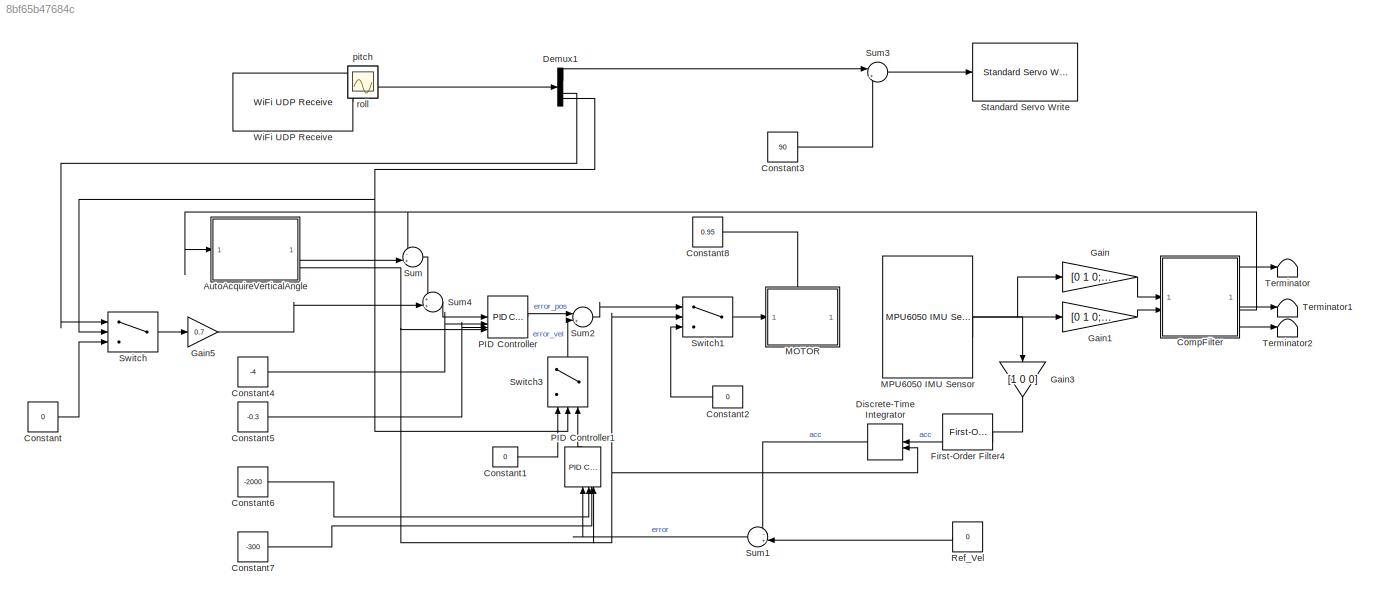
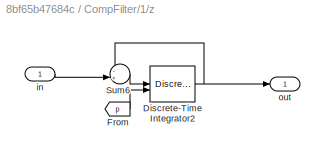
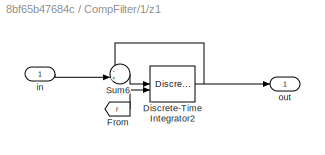
MODEL slx_8bf65b47684c
KIND model
CONFIG AbsTol = auto
CONFIG EnableMultiTasking = on
CONFIG FixedStep = T
CONFIG MaxStep = auto
CONFIG MinStep = auto
CONFIG PreLoadFcn = T=0.01;\nalpha=0.02;\n\nN=200 % window size for moving range
CONFIG RelTol = 1e-3
CONFIG SampleTimeConstraint = Unconstrained
CONFIG SolverName = FixedStepDiscrete
CONFIG StartTime = 0.0
CONFIG StopTime = inf
WORKSPACE source: mxarray member
WORKSPACE deadzone = 100
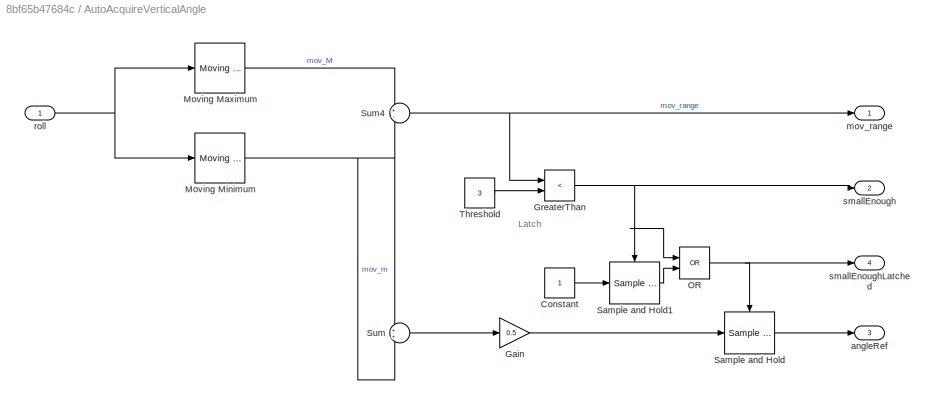
BLOCK [SubSystem] AutoAcquireVerticalAngle
BLOCK [Constant] AutoAcquireVerticalAngle/Constant
BLOCK [Gain] AutoAcquireVerticalAngle/Gain
  Gain = 0.5
BLOCK [RelationalOperator] AutoAcquireVerticalAngle/GreaterThan
  InputSameDT = off
  Operator = <
  OutDataTypeStr = boolean
  RndMeth = Simplest
BLOCK [Reference] AutoAcquireVerticalAngle/Moving Maximum  REF=dspstat3/Moving
Maximum
  SourceBlock = dspstat3/Moving\nMaximum
  SourceType = dsp.simulink.MovingMaximum
BLOCK [Reference] AutoAcquireVerticalAngle/Moving Minimum  REF=dspstat3/Moving
Minimum
  SourceBlock = dspstat3/Moving\nMinimum
  SourceType = dsp.simulink.MovingMinimum
BLOCK [Logic] AutoAcquireVerticalAngle/OR
  AllPortsSameDT = off
  IconShape = distinctive
  Operator = OR
  OutDataTypeStr = boolean
BLOCK [Reference] AutoAcquireVerticalAngle/Sample and Hold  REF=dspsigops/Sample
and Hold
  SourceBlock = dspsigops/Sample\nand Hold
  SourceType = Sample and Hold
BLOCK [Reference] AutoAcquireVerticalAngle/Sample and Hold1  REF=dspsigops/Sample
and Hold
  SourceBlock = dspsigops/Sample\nand Hold
  SourceType = Sample and Hold
BLOCK [Sum] AutoAcquireVerticalAngle/Sum
BLOCK [Sum] AutoAcquireVerticalAngle/Sum4
  Inputs = +-
BLOCK [Constant] AutoAcquireVerticalAngle/Threshold
  Value = 3
BLOCK [Outport] AutoAcquireVerticalAngle/angleRef
  Port = 3
BLOCK [Outport] AutoAcquireVerticalAngle/mov_range
BLOCK [Inport] AutoAcquireVerticalAngle/roll
BLOCK [Outport] AutoAcquireVerticalAngle/smallEnough
  Port = 2
BLOCK [Outport] AutoAcquireVerticalAngle/smallEnoughLatched
  Port = 4
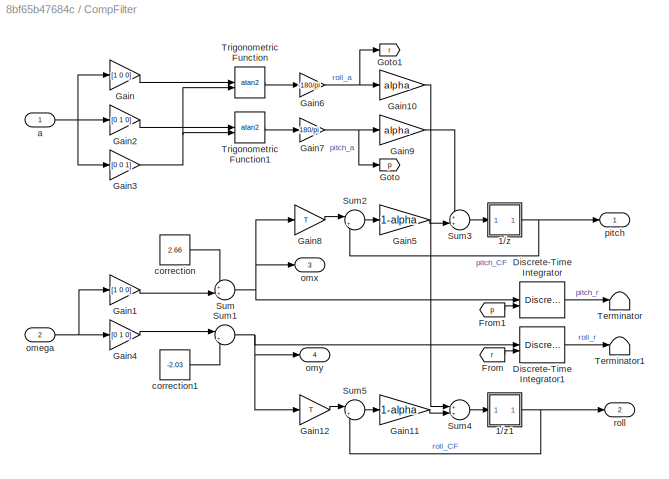
BLOCK [SubSystem] CompFilter
BLOCK [SubSystem] CompFilter/1//z
BLOCK [DiscreteIntegrator] CompFilter/1//z/Discrete-Time Integrator2
  ICPrevOutput = DiscIntNeverNeededParam
  ICPrevScaledInput = DiscIntNeverNeededParam
  InitialConditionSetting = Auto
  InitialConditionSource = external
  IntegratorMethod = Accumulation: Forward Euler
  SampleTime = -1
BLOCK [From] CompFilter/1//z/From
  GotoTag = p
  TagVisibility = global
BLOCK [Sum] CompFilter/1//z/Sum6
  Inputs = -+|
BLOCK [Inport] CompFilter/1//z/in
BLOCK [Outport] CompFilter/1//z/out
BLOCK [SubSystem] CompFilter/1//z1
BLOCK [DiscreteIntegrator] CompFilter/1//z1/Discrete-Time Integrator2
  ICPrevOutput = DiscIntNeverNeededParam
  ICPrevScaledInput = DiscIntNeverNeededParam
  InitialConditionSetting = Auto
  InitialConditionSource = external
  IntegratorMethod = Accumulation: Forward Euler
  SampleTime = -1
BLOCK [From] CompFilter/1//z1/From
  GotoTag = r
  TagVisibility = global
BLOCK [Sum] CompFilter/1//z1/Sum6
  Inputs = -+|
BLOCK [Inport] CompFilter/1//z1/in
BLOCK [Outport] CompFilter/1//z1/out
BLOCK [DiscreteIntegrator] CompFilter/Discrete-Time Integrator
  ICPrevOutput = DiscIntNeverNeededParam
  ICPrevScaledInput = DiscIntNeverNeededParam
  InitialConditionSetting = Auto
  InitialConditionSource = external
  SampleTime = -1
BLOCK [DiscreteIntegrator] CompFilter/Discrete-Time Integrator1
  ICPrevOutput = DiscIntNeverNeededParam
  ICPrevScaledInput = DiscIntNeverNeededParam
  InitialConditionSetting = Auto
  InitialConditionSource = external
  SampleTime = -1
BLOCK [From] CompFilter/From
  GotoTag = r
  TagVisibility = global
BLOCK [From] CompFilter/From1
  GotoTag = p
  TagVisibility = global
BLOCK [Gain] CompFilter/Gain
  Gain = [1 0 0]
  Multiplication = Matrix(K*u)
BLOCK [Gain] CompFilter/Gain1
  Gain = [1 0 0]
  Multiplication = Matrix(K*u)
BLOCK [Gain] CompFilter/Gain10
  Gain = alpha
BLOCK [Gain] CompFilter/Gain11
  Gain = 1-alpha
BLOCK [Gain] CompFilter/Gain12
  Gain = T
BLOCK [Gain] CompFilter/Gain2
  Gain = [0 1 0]
  Multiplication = Matrix(K*u)
BLOCK [Gain] CompFilter/Gain3
  Gain = [0 0 1]
  Multiplication = Matrix(K*u)
BLOCK [Gain] CompFilter/Gain4
  Gain = [0 1 0]
  Multiplication = Matrix(K*u)
BLOCK [Gain] CompFilter/Gain5
  Gain = 1-alpha
BLOCK [Gain] CompFilter/Gain6
  Gain = -180/pi
BLOCK [Gain] CompFilter/Gain7
  Gain = 180/pi
BLOCK [Gain] CompFilter/Gain8
  Gain = T
BLOCK [Gain] CompFilter/Gain9
  Gain = alpha
BLOCK [Goto] CompFilter/Goto
  GotoTag = p
  TagVisibility = global
BLOCK [Goto] CompFilter/Goto1
  GotoTag = r
  TagVisibility = global
BLOCK [Sum] CompFilter/Sum
  Inputs = ++|
BLOCK [Sum] CompFilter/Sum1
  Inputs = |++
BLOCK [Sum] CompFilter/Sum2
  Inputs = |++
BLOCK [Sum] CompFilter/Sum3
  Inputs = ++|
BLOCK [Sum] CompFilter/Sum4
  Inputs = ++|
BLOCK [Sum] CompFilter/Sum5
  Inputs = |++
BLOCK [Terminator] CompFilter/Terminator
BLOCK [Terminator] CompFilter/Terminator1
BLOCK [Trigonometry] CompFilter/Trigonometric Function
  Operator = atan2
BLOCK [Trigonometry] CompFilter/Trigonometric Function1
  Operator = atan2
BLOCK [Inport] CompFilter/a
BLOCK [Constant] CompFilter/correction
  SampleTime = T
  Value = 2.66
BLOCK [Constant] CompFilter/correction1
  SampleTime = T
  Value = -2.03
BLOCK [Inport] CompFilter/omega
  Port = 2
BLOCK [Outport] CompFilter/omx
  Port = 3
BLOCK [Outport] CompFilter/omy
  Port = 4
BLOCK [Outport] CompFilter/pitch
BLOCK [Outport] CompFilter/roll
  Port = 2
BLOCK [Constant] Constant
  NameLocation = top
  Value = 0
BLOCK [Constant] Constant1
  Value = 0
BLOCK [Constant] Constant2
  NameLocation = top
  Value = 0
BLOCK [Constant] Constant3
  Value = 90
BLOCK [Constant] Constant4
  Value = -4
BLOCK [Constant] Constant5
  Value = -0.3
BLOCK [Constant] Constant6
  Value = -2000
BLOCK [Constant] Constant7
  Value = -300
BLOCK [Constant] Constant8
  Value = 0.95
BLOCK [Demux] Demux1
BLOCK [DiscreteIntegrator] Discrete-Time Integrator
  ExternalReset = rising
  ICPrevOutput = DiscIntNeverNeededParam
  ICPrevScaledInput = DiscIntNeverNeededParam
  InitialConditionSetting = Auto
  NameLocation = top
  SampleTime = -1
BLOCK [Reference] First-Order Filter4  REF=spsFirstOrderFilterLib/First-Order
Filter
  LibrarySourceBlock = sps_lib/Control/Filters/First-Order\nFilter
  NameLocation = top
  SourceBlock = spsFirstOrderFilterLib/First-Order\nFilter
  SourceType = First-Order Filter
BLOCK [Gain] Gain
  Gain = [0 1 0; 0 0 1; 1 0 0]
  Multiplication = Matrix(K*u) (u vector)
BLOCK [Gain] Gain1
  Gain = [0 1 0; 0 0 1; 1 0 0]
  Multiplication = Matrix(K*u) (u vector)
BLOCK [Gain] Gain3
  Gain = [1 0 0]
  Multiplication = Matrix(K*u) (u vector)
  NameLocation = left
BLOCK [Gain] Gain5
  Gain = 0.7
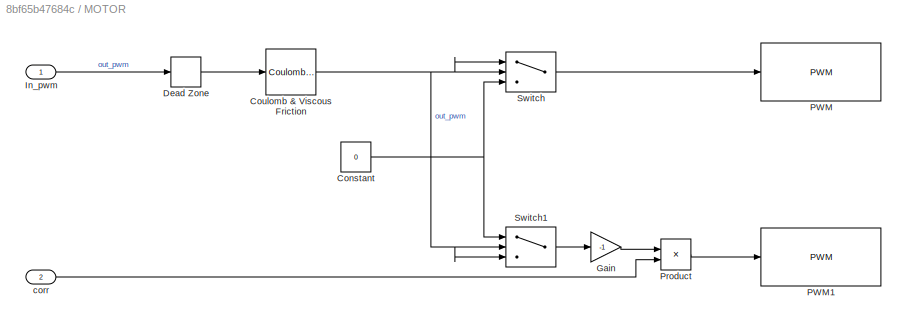
BLOCK [SubSystem] MOTOR
  PortSchema = {"entries":[{"content":{"sides":[{"content":{"connectorIds":["In1"]},"type":"ConnectorPlacement.EquallySpacedRectSide","uuid":"4dfa6da8-0fd4-4b38-98fa-19a097efdbe3"},{"content":{"side":"RIGHT"},"type":"ConnectorPlacement.EquallySpacedRectSide","uuid":"5fd8e77b-49e9-484d-9c8c-1bcf643e6957"},{"content":{"connectorIds":["In2"],"side":"TOP"},"type":"ConnectorPlacement.EquallySpacedRectSide","uuid":"5a...<+221ch>
BLOCK [Constant] MOTOR/Constant
  Value = 0
BLOCK [Reference] MOTOR/Coulomb & Viscous Friction  REF=simulink/Discontinuities/Coulomb &
Viscous Friction
  SourceBlock = simulink/Discontinuities/Coulomb &\nViscous Friction
  SourceType = Coulombic and Viscous Friction
BLOCK [DeadZone] MOTOR/Dead Zone
  LowerValue = -100
  UpperValue = 100
BLOCK [Gain] MOTOR/Gain
  Gain = -1
BLOCK [Inport] MOTOR/In_pwm
BLOCK [Reference] MOTOR/PWM  REF=arduinolib/PWM
  SourceBlock = arduinolib/PWM
  SourceType = Arduino PWM
BLOCK [Reference] MOTOR/PWM1  REF=arduinolib/PWM
  SourceBlock = arduinolib/PWM
  SourceType = Arduino PWM
BLOCK [Product] MOTOR/Product
BLOCK [Switch] MOTOR/Switch
  Criteria = u2 > Threshold
  InputSameDT = off
  SaturateOnIntegerOverflow = off
BLOCK [Switch] MOTOR/Switch1
  Criteria = u2 > Threshold
  InputSameDT = off
  SaturateOnIntegerOverflow = off
BLOCK [Inport] MOTOR/corr
  Port = 2
BLOCK [Reference] MPU6050 IMU Sensor  REF=arduinosensorlib/MPU6050 IMU Sensor
  SourceBlock = arduinosensorlib/MPU6050 IMU Sensor
  SourceType = MPU6050
BLOCK [Reference] PID Controller  REF=slpidlib/PID Controller
  LibrarySourceBlock = simulink/Continuous/PID Controller
  SourceBlock = slpidlib/PID Controller
  SourceType = PID 1dof
BLOCK [Reference] PID Controller1  REF=slpidlib/PID Controller
  LibrarySourceBlock = simulink/Continuous/PID Controller
  NameLocation = right
  SourceBlock = slpidlib/PID Controller
  SourceType = PID 1dof
BLOCK [Constant] Ref_Vel
  NameLocation = top
  Value = 0
BLOCK [Reference] Standard Servo Write  REF=arduinolib/Standard Servo Write
  SourceBlock = arduinolib/Standard Servo Write
  SourceType = Arduino Standard Servo Write
BLOCK [Sum] Sum
  Inputs = -+|
BLOCK [Sum] Sum1
  Inputs = -+|
  NameLocation = top
BLOCK [Sum] Sum2
  Inputs = |++
BLOCK [Sum] Sum3
  Inputs = |++
BLOCK [Sum] Sum4
  Inputs = ++|
BLOCK [Switch] Switch
  Criteria = u2 > Threshold
  InputSameDT = off
  SaturateOnIntegerOverflow = off
BLOCK [Switch] Switch1
  Criteria = u2 > Threshold
  InputSameDT = off
  SaturateOnIntegerOverflow = off
BLOCK [Switch] Switch3
  Criteria = u2 > Threshold
  InputSameDT = off
  NameLocation = right
  SaturateOnIntegerOverflow = off
BLOCK [Terminator] Terminator
BLOCK [Terminator] Terminator1
BLOCK [Terminator] Terminator2
BLOCK [Reference] WiFi UDP Receive  REF=arduinowifilib/WiFi UDP Receive
  SourceBlock = arduinowifilib/WiFi UDP Receive
  SourceType = Arduino WiFi UDP Receive
BLOCK [Scope] pitch
  Floating = off
  IOType = viewer
  NumInputPorts = 1
  ScopeSpecificationString = Simulink.scopes.TimeScopeBlockCfg('CurrentConfiguration', extmgr.ConfigurationSet(extmgr.Configuration('Core','General UI',true),extmgr.Configuration('Core','Source UI',true),extmgr.Configuration('Sources','WiredSimulink',true,'DataLoggingVariableName','ScopeData2'),extmgr.Configuration('Visuals','Time Domain',true,'SerializedDisplays',{struct('MinYLimReal','-23.31045','MaxYLimReal','24.61074','YL...<+1409ch>
BLOCK [Scope] roll
  Floating = off
  IOType = viewer
  NumInputPorts = 1
  ScopeSpecificationString = Simulink.scopes.TimeScopeBlockCfg('CurrentConfiguration', extmgr.ConfigurationSet(extmgr.Configuration('Core','General UI',true),extmgr.Configuration('Core','Source UI',true),extmgr.Configuration('Sources','WiredSimulink',true,'DataLoggingVariableName','ScopeData3'),extmgr.Configuration('Visuals','Time Domain',true,'SerializedDisplays',{struct('MinYLimReal','-152.28796','MaxYLimReal','127.60947','...<+1417ch>
ANNOTATION AutoAcquireVerticalAngle: Latch
LINE AutoAcquireVerticalAngle/Constant:1 -> AutoAcquireVerticalAngle/Sample and Hold1:1
LINE AutoAcquireVerticalAngle/Gain:1 -> AutoAcquireVerticalAngle/Sample and Hold:1
NET AutoAcquireVerticalAngle/GreaterThan:1 -> AutoAcquireVerticalAngle/OR:1, AutoAcquireVerticalAngle/Sample and Hold1:trigger, AutoAcquireVerticalAngle/smallEnough:1
LINE AutoAcquireVerticalAngle/Moving Maximum:1 -> AutoAcquireVerticalAngle/Sum4:1
NET AutoAcquireVerticalAngle/Moving Minimum:1 -> AutoAcquireVerticalAngle/Sum4:2, AutoAcquireVerticalAngle/Sum:1, AutoAcquireVerticalAngle/Sum:2
NET AutoAcquireVerticalAngle/OR:1 -> AutoAcquireVerticalAngle/Sample and Hold:trigger, AutoAcquireVerticalAngle/smallEnoughLatched:1
LINE AutoAcquireVerticalAngle/Sample and Hold1:1 -> AutoAcquireVerticalAngle/OR:2
LINE AutoAcquireVerticalAngle/Sample and Hold:1 -> AutoAcquireVerticalAngle/angleRef:1
NET AutoAcquireVerticalAngle/Sum4:1 -> AutoAcquireVerticalAngle/GreaterThan:1, AutoAcquireVerticalAngle/mov_range:1
LINE AutoAcquireVerticalAngle/Sum:1 -> AutoAcquireVerticalAngle/Gain:1
LINE AutoAcquireVerticalAngle/Threshold:1 -> AutoAcquireVerticalAngle/GreaterThan:2
NET AutoAcquireVerticalAngle/roll:1 -> AutoAcquireVerticalAngle/Moving Maximum:1, AutoAcquireVerticalAngle/Moving Minimum:1
LINE AutoAcquireVerticalAngle:3 -> Sum:2
NET AutoAcquireVerticalAngle:4 -> Discrete-Time Integrator:2, PID Controller1:4, PID Controller:4, Switch1:2
NET CompFilter/1//z/Discrete-Time Integrator2:1 -> CompFilter/1//z/Sum6:1, CompFilter/1//z/out:1
LINE CompFilter/1//z/From:1 -> CompFilter/1//z/Discrete-Time Integrator2:2
LINE CompFilter/1//z/Sum6:1 -> CompFilter/1//z/Discrete-Time Integrator2:1
LINE CompFilter/1//z/in:1 -> CompFilter/1//z/Sum6:2
NET CompFilter/1//z1/Discrete-Time Integrator2:1 -> CompFilter/1//z1/Sum6:1, CompFilter/1//z1/out:1
LINE CompFilter/1//z1/From:1 -> CompFilter/1//z1/Discrete-Time Integrator2:2
LINE CompFilter/1//z1/Sum6:1 -> CompFilter/1//z1/Discrete-Time Integrator2:1
LINE CompFilter/1//z1/in:1 -> CompFilter/1//z1/Sum6:2
NET CompFilter/1//z1:1 -> CompFilter/Sum5:2, CompFilter/roll:1
NET CompFilter/1//z:1 -> CompFilter/Sum2:2, CompFilter/pitch:1
LINE CompFilter/Discrete-Time Integrator1:1 -> CompFilter/Terminator1:1
LINE CompFilter/Discrete-Time Integrator:1 -> CompFilter/Terminator:1
LINE CompFilter/From1:1 -> CompFilter/Discrete-Time Integrator:2
LINE CompFilter/From:1 -> CompFilter/Discrete-Time Integrator1:2
LINE CompFilter/Gain10:1 -> CompFilter/Sum4:1
LINE CompFilter/Gain11:1 -> CompFilter/Sum4:2
LINE CompFilter/Gain12:1 -> CompFilter/Sum5:1
LINE CompFilter/Gain1:1 -> CompFilter/Sum:2
LINE CompFilter/Gain2:1 -> CompFilter/Trigonometric Function1:1
NET CompFilter/Gain3:1 -> CompFilter/Trigonometric Function1:2, CompFilter/Trigonometric Function:2
LINE CompFilter/Gain4:1 -> CompFilter/Sum1:1
LINE CompFilter/Gain5:1 -> CompFilter/Sum3:2
NET CompFilter/Gain6:1 -> CompFilter/Gain10:1, CompFilter/Goto1:1
NET CompFilter/Gain7:1 -> CompFilter/Gain9:1, CompFilter/Goto:1
LINE CompFilter/Gain8:1 -> CompFilter/Sum2:1
LINE CompFilter/Gain9:1 -> CompFilter/Sum3:1
LINE CompFilter/Gain:1 -> CompFilter/Trigonometric Function:1
NET CompFilter/Sum1:1 -> CompFilter/Discrete-Time Integrator1:1, CompFilter/Gain12:1, CompFilter/omy:1
LINE CompFilter/Sum2:1 -> CompFilter/Gain5:1
LINE CompFilter/Sum3:1 -> CompFilter/1//z:1
LINE CompFilter/Sum4:1 -> CompFilter/1//z1:1
LINE CompFilter/Sum5:1 -> CompFilter/Gain11:1
NET CompFilter/Sum:1 -> CompFilter/Discrete-Time Integrator:1, CompFilter/Gain8:1, CompFilter/omx:1
LINE CompFilter/Trigonometric Function1:1 -> CompFilter/Gain7:1
LINE CompFilter/Trigonometric Function:1 -> CompFilter/Gain6:1
NET CompFilter/a:1 -> CompFilter/Gain2:1, CompFilter/Gain3:1, CompFilter/Gain:1
LINE CompFilter/correction1:1 -> CompFilter/Sum1:2
LINE CompFilter/correction:1 -> CompFilter/Sum:1
NET CompFilter/omega:1 -> CompFilter/Gain1:1, CompFilter/Gain4:1
LINE CompFilter:1 -> Terminator:1
NET CompFilter:2 -> AutoAcquireVerticalAngle:1, Sum:1
LINE CompFilter:3 -> Terminator1:1
LINE CompFilter:4 -> Terminator2:1
LINE Constant1:1 -> Switch3:1
LINE Constant2:1 -> Switch1:3
LINE Constant3:1 -> Sum3:2
LINE Constant4:1 -> PID Controller:2
LINE Constant5:1 -> PID Controller:3
LINE Constant6:1 -> PID Controller1:2
LINE Constant7:1 -> PID Controller1:3
LINE Constant8:1 -> MOTOR:2
LINE Constant:1 -> Switch:3
LINE Demux1:1 -> Sum3:1
LINE Demux1:2 -> Switch:1
NET Demux1:4 -> Switch3:2, Switch:2
LINE Discrete-Time Integrator:1 -> Sum1:1
LINE First-Order Filter4:1 -> Discrete-Time Integrator:1
LINE Gain1:1 -> CompFilter:2
LINE Gain3:1 -> First-Order Filter4:1
LINE Gain5:1 -> Sum4:2
LINE Gain:1 -> CompFilter:1
NET MOTOR/Constant:1 -> MOTOR/Switch1:1, MOTOR/Switch:3
NET MOTOR/Coulomb & Viscous Friction:1 -> MOTOR/Switch1:2, MOTOR/Switch1:3, MOTOR/Switch:1, MOTOR/Switch:2
LINE MOTOR/Dead Zone:1 -> MOTOR/Coulomb & Viscous Friction:1
LINE MOTOR/Gain:1 -> MOTOR/Product:1
LINE MOTOR/In_pwm:1 -> MOTOR/Dead Zone:1
LINE MOTOR/Product:1 -> MOTOR/PWM1:1
LINE MOTOR/Switch1:1 -> MOTOR/Gain:1
LINE MOTOR/Switch:1 -> MOTOR/PWM:1
LINE MOTOR/corr:1 -> MOTOR/Product:2
NET MPU6050 IMU Sensor:1 -> Gain3:1, Gain:1
LINE MPU6050 IMU Sensor:2 -> Gain1:1
LINE PID Controller1:1 -> Switch3:3
LINE PID Controller:1 -> Sum2:1
LINE Ref_Vel:1 -> Sum1:2
LINE Sum1:1 -> PID Controller1:1
LINE Sum2:1 -> Switch1:1
LINE Sum3:1 -> Standard Servo Write:1
LINE Sum4:1 -> PID Controller:1
LINE Sum:1 -> Sum4:1
LINE Switch1:1 -> MOTOR:1
LINE Switch3:1 -> Sum2:2
LINE Switch:1 -> Gain5:1
LINE WiFi UDP Receive:1 -> Demux1:1
note: NET lines group one-source signal fan-out (src -> all destinations, sorted); 1:1 wires keep LINE
